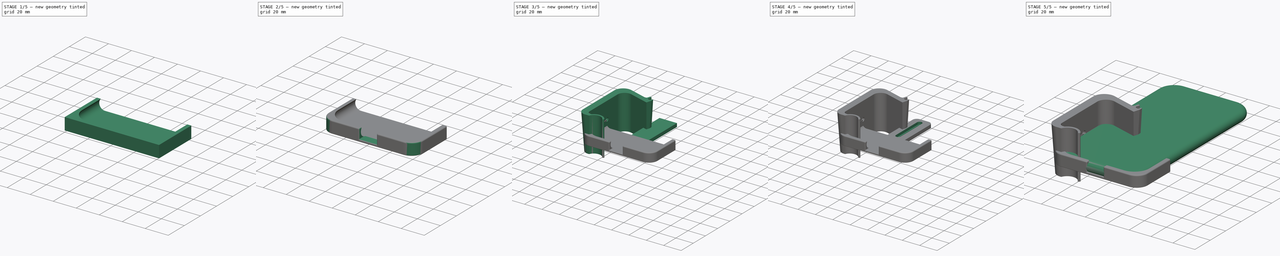
[diagram: build sequence overview — one tinted view per stage of 5, left to right]
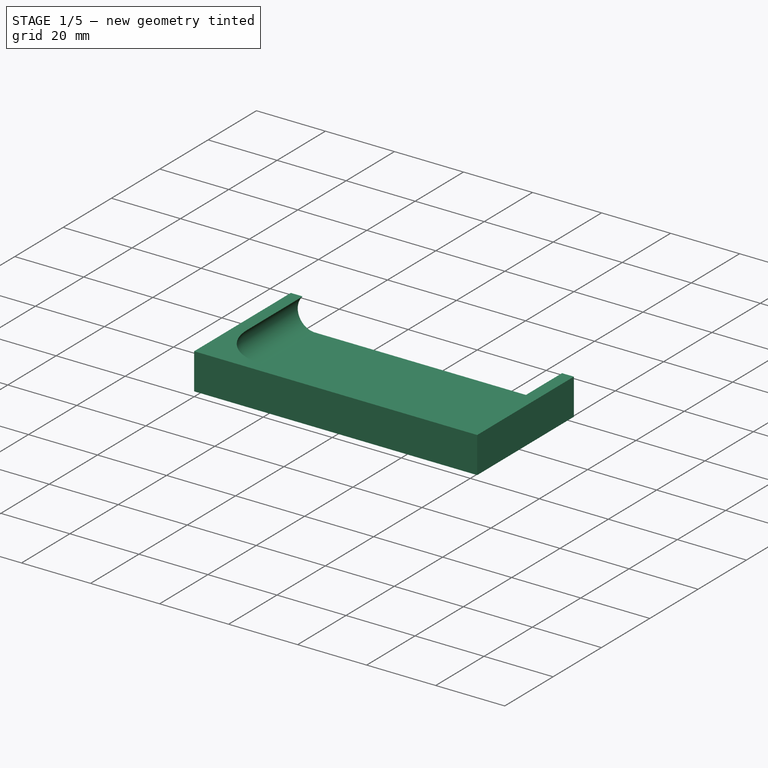
[diagram: stage 1 of 5 — iso view after this stage's code; geometry added in this stage tinted green]
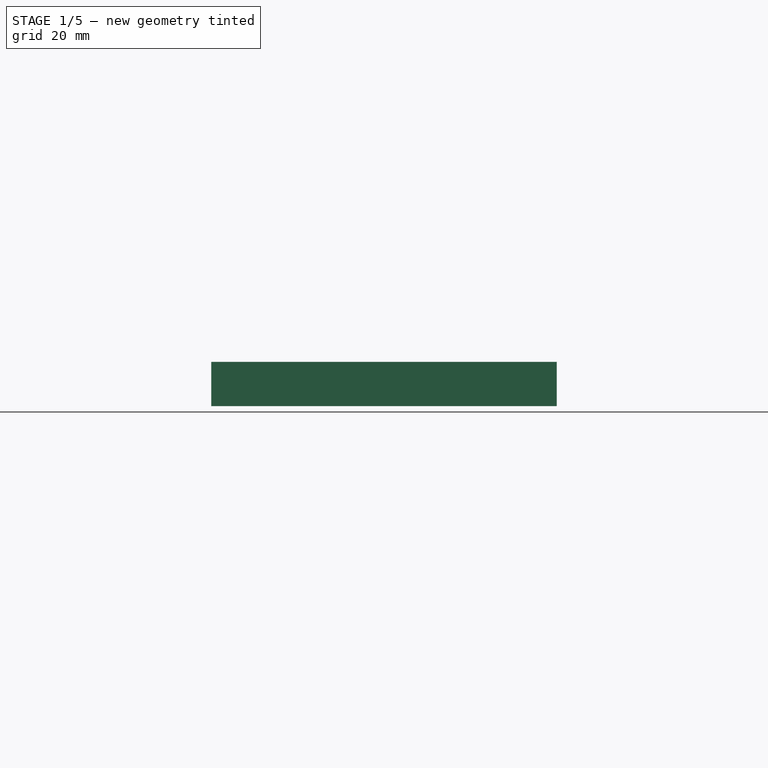
[diagram: stage 1 of 5 — front view after this stage's code; geometry added in this stage tinted green]
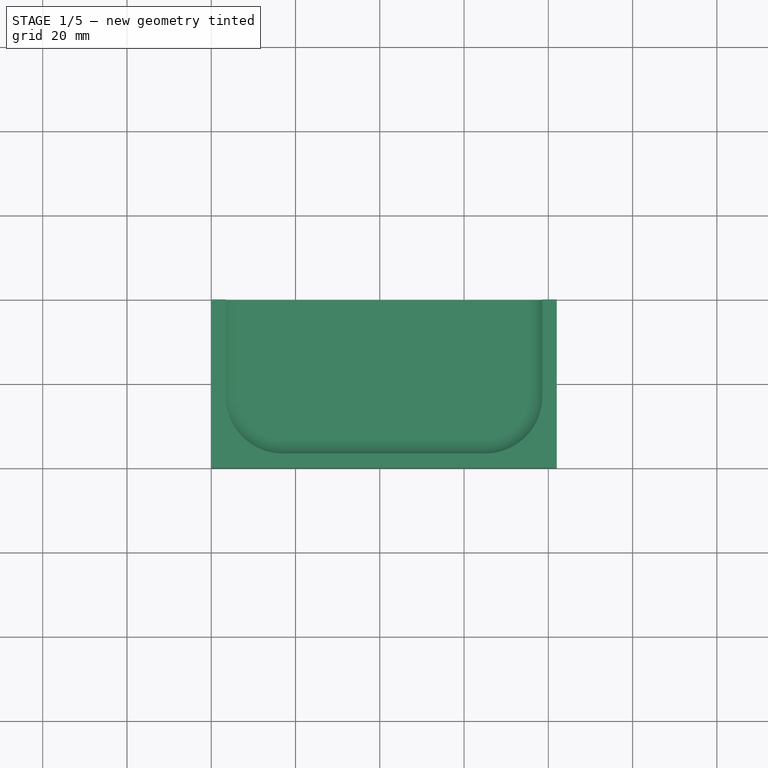
[diagram: stage 1 of 5 — top view after this stage's code; geometry added in this stage tinted green]
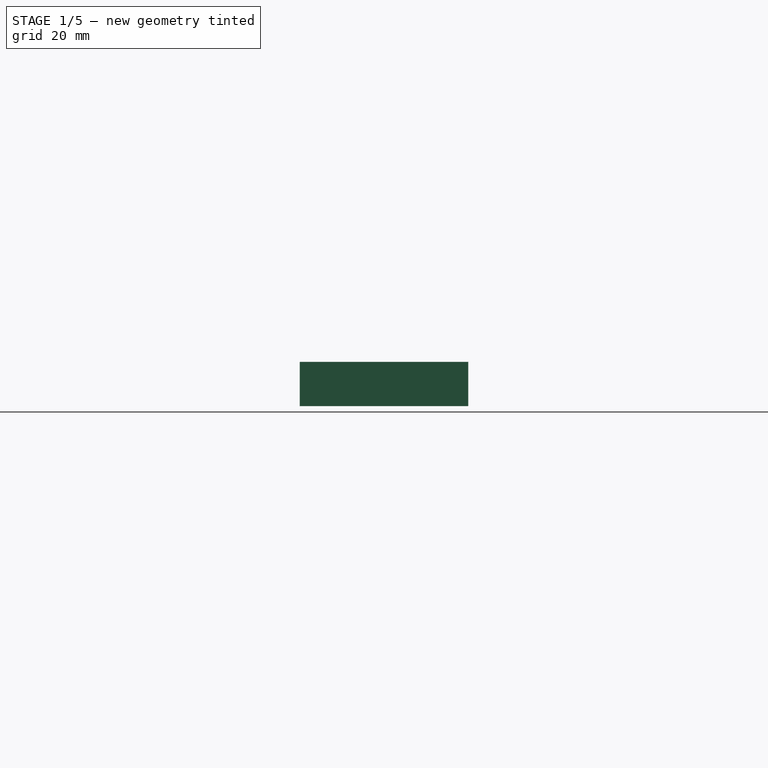
[diagram: stage 1 of 5 — right view after this stage's code; geometry added in this stage tinted green]
FCSTD DOCUMENT  (FreeCAD 0.19R)
Label: car_holder_iphone11_2
License: All rights reserved
LicenseURL: http://en.wikipedia.org/wiki/All_rights_reserved
objects: Sketcher::SketchObject×11, PartDesign::Fillet×6, PartDesign::Body×5, PartDesign::Pocket×4, PartDesign::Pad×2, PartDesign::AdditivePipe×2, PartDesign::AdditiveBox×2, PartDesign::Boolean×1, PartDesign::Chamfer×1, Part::Feature×1, PartDesign::FeatureBase×1, PartDesign::Hole×1
note: 55 computed .brp shape members not serialized (recipe doc carries the construction recipe); baked Part::Feature solids carry a one-line shape summary decoded from their .brp

FEATURE [Sketcher::SketchObject] Sketch
  FullyConstrained = true
  MapMode = 5
  Support = -> [XY_Plane]
  sketch-geometry (8):
    g0: LineSegment StartX=15 StartY=150 StartZ=0 EndX=63 EndY=150 EndZ=0
    g1: LineSegment StartX=73 StartY=140 StartZ=0 EndX=73 EndY=15 EndZ=0
    g2: LineSegment StartX=63 StartY=5 StartZ=0 EndX=15 EndY=5 EndZ=0
    g3: LineSegment StartX=5 StartY=15 StartZ=0 EndX=5 EndY=140 EndZ=0
    g4: ArcOfCircle CenterX=15 CenterY=140 CenterZ=0 NormalX=0 NormalY=0 NormalZ=1 AngleXU=0 Radius=10 StartAngle=1.5708 EndAngle=3.14159
    g5: ArcOfCircle CenterX=63 CenterY=140 CenterZ=0 NormalX=0 NormalY=0 NormalZ=1 AngleXU=0 Radius=10 StartAngle=-3.38e-14 EndAngle=1.5708
    g6: ArcOfCircle CenterX=63 CenterY=15 CenterZ=0 NormalX=0 NormalY=0 NormalZ=1 AngleXU=0 Radius=10 StartAngle=4.71239 EndAngle=6.28319
    g7: ArcOfCircle CenterX=15 CenterY=15 CenterZ=0 NormalX=0 NormalY=0 NormalZ=1 AngleXU=0 Radius=10 StartAngle=3.14159 EndAngle=4.71239
  constraints (20):
    c: Horizontal(g0)
    c: Horizontal(g2)
    c: Vertical(g1)
    c: Vertical(g3)
    c: Tangent(g0,g4) = 1.5708
    c: Tangent(g3,g4) = 1.5708
    c: Tangent(g0,g5) = 1.5708
    c: Tangent(g1,g5) = 1.5708
    c: Tangent(g1,g6) = 1.5708
    c: Tangent(g2,g6) = 1.5708
    c: Tangent(g2,g7) = 1.5708
    c: Tangent(g3,g7) = 1.5708
    c: Equal(g4,g5)
    c: Equal(g5,g6)
    c: Equal(g6,g7)
    c: Radius(g4) = 10
    c: DistanceX(g3,g1) = 68
    c: DistanceY(g1,g1) = 125
    c: DistanceY(g-1,g2) = 5
    c: DistanceX(g-1,g3) = 5
FEATURE [Sketcher::SketchObject] Sketch001
  AttachmentOffset = pos=(5,5,5) rot=(0,0,1;0rad)
  FullyConstrained = true
  MapMode = 5
  Placement = pos=(5,5,5) rot=(0,0,1;0rad)
  Support = -> [XY_Plane]
  sketch-geometry (8):
    g0: LineSegment StartX=10 StartY=145 StartZ=0 EndX=58 EndY=145 EndZ=0
    g1: LineSegment StartX=68 StartY=135 StartZ=0 EndX=68 EndY=10 EndZ=0
    g2: LineSegment StartX=58 StartY=1.563e-13 StartZ=0 EndX=10 EndY=1.563e-13 EndZ=0
    g3: LineSegment StartX=3.02e-14 StartY=10 StartZ=0 EndX=3.02e-14 EndY=135 EndZ=0
    g4: ArcOfCircle CenterX=10 CenterY=135 CenterZ=0 NormalX=0 NormalY=0 NormalZ=1 AngleXU=0 Radius=10 StartAngle=1.5708 EndAngle=3.14159
    g5: ArcOfCircle CenterX=58 CenterY=135 CenterZ=0 NormalX=0 NormalY=0 NormalZ=1 AngleXU=0 Radius=10 StartAngle=-3.2e-14 EndAngle=1.5708
    g6: ArcOfCircle CenterX=58 CenterY=10 CenterZ=0 NormalX=0 NormalY=0 NormalZ=1 AngleXU=0 Radius=10 StartAngle=4.71239 EndAngle=6.28319
    g7: ArcOfCircle CenterX=10 CenterY=10 CenterZ=0 NormalX=0 NormalY=0 NormalZ=1 AngleXU=0 Radius=10 StartAngle=3.14159 EndAngle=4.71239
  constraints (20):
    c: Horizontal(g0)
    c: Horizontal(g2)
    c: Vertical(g1)
    c: Vertical(g3)
    c: Tangent(g0,g4) = 1.5708
    c: Tangent(g3,g4) = 1.5708
    c: Tangent(g0,g5) = 1.5708
    c: Tangent(g1,g5) = 1.5708
    c: Tangent(g1,g6) = 1.5708
    c: Tangent(g2,g6) = 1.5708
    c: Tangent(g2,g7) = 1.5708
    c: Tangent(g3,g7) = 1.5708
    c: Equal(g4,g5)
    c: Equal(g5,g6)
    c: Equal(g6,g7)
    c: Radius(g4) = 10
    c: DistanceX(g3,g1) = 68
    c: DistanceY(g1,g1) = 125
    c: Horizontal(g2,g-1)
    c: Vertical(g3,g-1)
FEATURE [PartDesign::Pad] Pad
  Direction = (1,1,1)
  Length = 10
  Length2 = 100
  Profile = -> Sketch
  Refine = true
  Type = 0
FEATURE [Sketcher::SketchObject] Sketch002
  AttachmentOffset = pos=(0,0,-15) rot=(0,0,1;0rad)
  FullyConstrained = true
  MapMode = 5
  Placement = pos=(0,15,-3.3e-15) rot=(1,0,0;1.5708rad)
  Support = -> [XZ_Plane]
  sketch-geometry (4):
    g0: ArcOfCircle CenterX=5 CenterY=5 CenterZ=0 NormalX=0 NormalY=0 NormalZ=1 AngleXU=0 Radius=5 StartAngle=1.5708 EndAngle=4.71239
    g1: LineSegment StartX=5 StartY=10 StartZ=0 EndX=6 EndY=10 EndZ=0
    g2: LineSegment StartX=6 StartY=10 StartZ=0 EndX=6 EndY=0 EndZ=0
    g3: LineSegment StartX=6 StartY=0 StartZ=0 EndX=5 EndY=0 EndZ=0
  constraints (12):
    c: Vertical(g0,g0)
    c: Vertical(g0,g0)
    c: Radius(g0) = 5
    c: DistanceX(g0,g-1) = -5
    c: Horizontal(g0,g-1)
    c: Tangent(g0,g1) = 1.5708
    c: Coincident(g1,g2)
    c: PointOnObject(g2,g-1)
    c: Vertical(g2)
    c: Coincident(g2,g3)
    c: Coincident(g3,g0)
    c: DistanceX(g1,g1) = 1
FEATURE [PartDesign::AdditivePipe] AdditivePipe
  AuxilleryCurvelinear = true
  AuxillerySpineTangent = false
  BaseFeature = -> Pad
  Binormal = (0,0,0)
  Mode = 0
  Profile = -> Sketch002
  Refine = true
  Spine = -> Sketch001
  SpineTangent = false
  Transformation = 0
  Transition = 0
FEATURE [PartDesign::Body] Body
  Group = -> [Sketch,Pad,Sketch001,Sketch002,AdditivePipe]
  Origin = -> Origin
  Placement = pos=(2,2,2) rot=(0,0,1;0rad)
  Tip = -> AdditivePipe
FEATURE [PartDesign::AdditiveBox] Box
  AttacherType = Attacher::AttachEngine3D
  Height = 10.5
  Length = 82
  Refine = true
  Width = 40
FEATURE [PartDesign::Boolean] Boolean
  BaseFeature = -> Box
  Group = -> [Body]
  Refine = true
  Type = 1
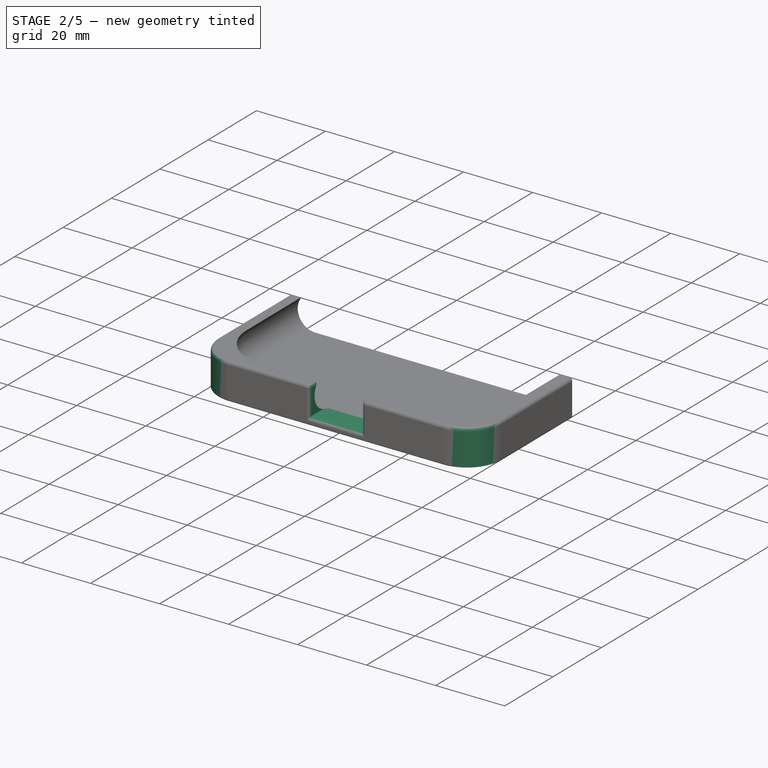
[diagram: stage 2 of 5 — iso view after this stage's code; geometry added in this stage tinted green]
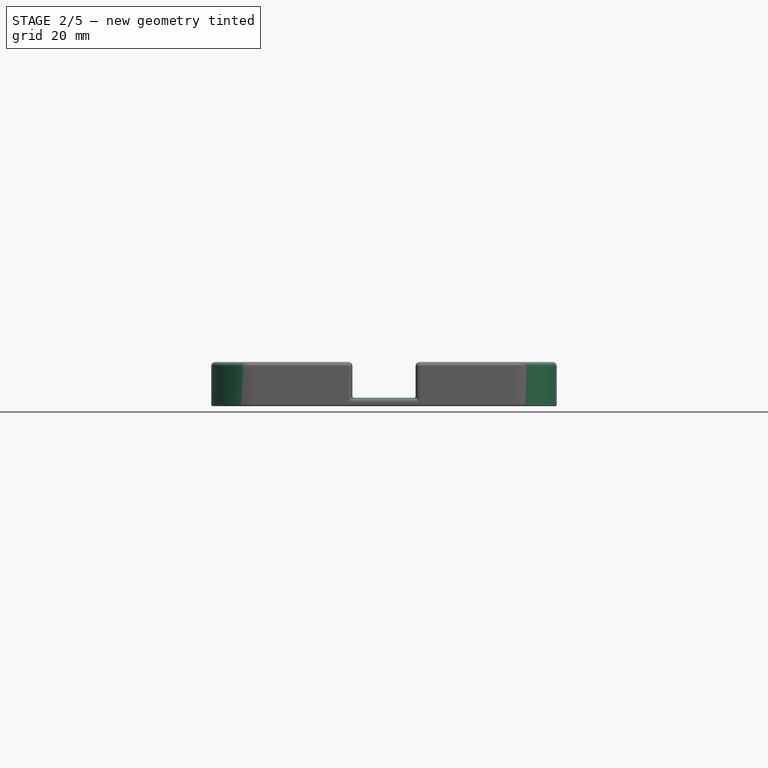
[diagram: stage 2 of 5 — front view after this stage's code; geometry added in this stage tinted green]
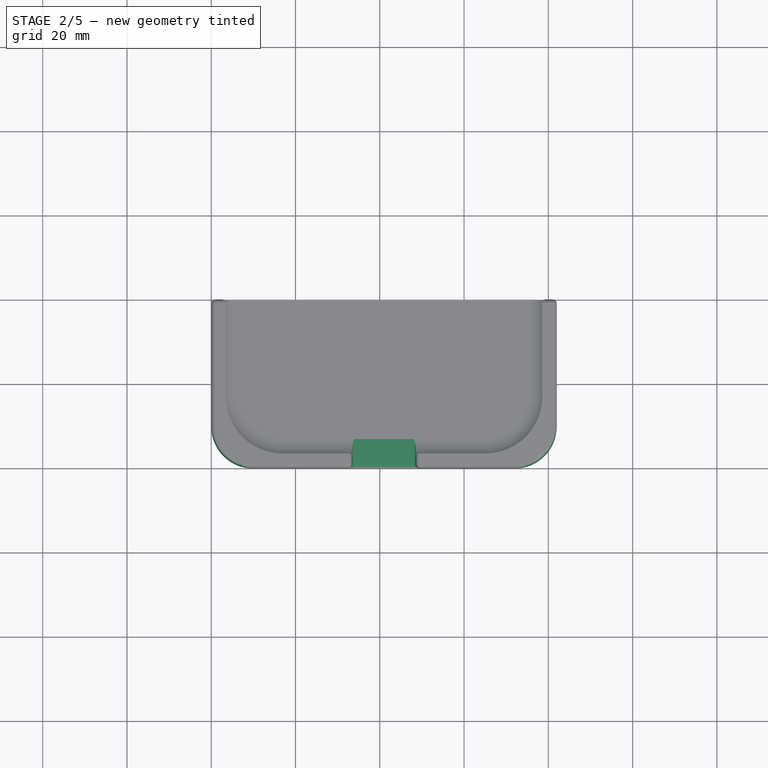
[diagram: stage 2 of 5 — top view after this stage's code; geometry added in this stage tinted green]
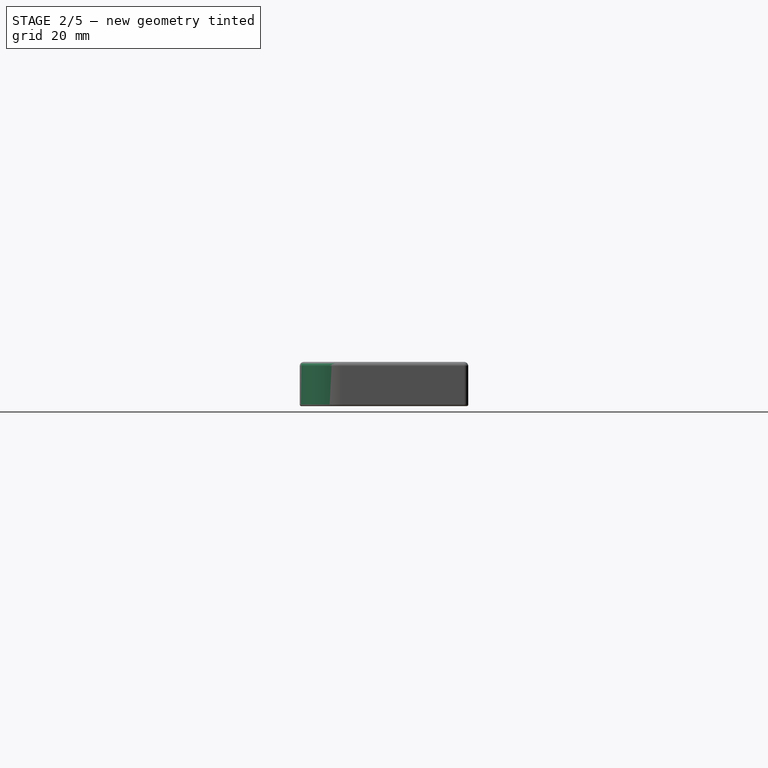
[diagram: stage 2 of 5 — right view after this stage's code; geometry added in this stage tinted green]
FEATURE [PartDesign::Body] Body004  label="clamp"
  BaseFeature = -> Part__Feature
  Group = -> [BaseFeature,Sketch009,Hole]
  Origin = -> Origin004
  Placement = pos=(31,30,-4.08) rot=(0,1,0;1.65806rad)
  Tip = -> Hole
FEATURE [Sketcher::SketchObject] Sketch010
  FullyConstrained = true
  MapMode = 5
  Placement = pos=(0,0,0) rot=(1,0,0;1.5708rad)
  Support = -> [XZ_Plane001]
  expr: Constraints[11] = (82 - 15) / 2
  sketch-geometry (4):
    g0: LineSegment StartX=33.5 StartY=10.5 StartZ=0 EndX=48.5 EndY=10.5 EndZ=0
    g1: LineSegment StartX=48.5 StartY=10.5 StartZ=0 EndX=48.5 EndY=2 EndZ=0
    g2: LineSegment StartX=48.5 StartY=2 StartZ=0 EndX=33.5 EndY=2 EndZ=0
    g3: LineSegment StartX=33.5 StartY=2 StartZ=0 EndX=33.5 EndY=10.5 EndZ=0
  constraints (12):
    c: Coincident(g0,g1)
    c: Coincident(g1,g2)
    c: Coincident(g2,g3)
    c: Coincident(g3,g0)
    c: Horizontal(g0)
    c: Horizontal(g2)
    c: Vertical(g1)
    c: Vertical(g3)
    c: DistanceY(g-1,g2) = 2
    c: DistanceX(g0,g0) = 15
    c: DistanceY(g1,g1) = 8.5
    c: DistanceX(g-1,g2) = 33.5
FEATURE [PartDesign::Pocket] Pocket003
  BaseFeature = -> Boolean
  Length = 5
  Length2 = 100
  Profile = -> Sketch010
  Refine = true
  Type = 1
FEATURE [PartDesign::Fillet] Fillet
  Base = -> Pocket003 [Edge1,Edge5]
  BaseFeature = -> Pocket003
  Radius = 10
  Refine = true
  SupportTransform = false
FEATURE [PartDesign::Fillet] Fillet004
  Base = -> Fillet [Edge1,Edge6,Edge5,Edge23,Edge37,Edge35,Edge7,Edge39,Edge27,Edge26,Edge25,Edge9,Edge15,Edge14,Edge3]
  BaseFeature = -> Fillet
  Radius = 1
  Refine = true
  SupportTransform = false
FEATURE [PartDesign::Fillet] Fillet005
  Base = -> Fillet004 [Edge6,Edge75,Edge73]
  BaseFeature = -> Fillet004
  Radius = 0.4
  Refine = true
  SupportTransform = false
FEATURE [PartDesign::Body] Body001  label="frame"
  Group = -> [Box,Boolean,Pocket003,Fillet,Sketch010,Fillet004,Fillet005]
  Origin = -> Origin001
  Tip = -> Fillet005
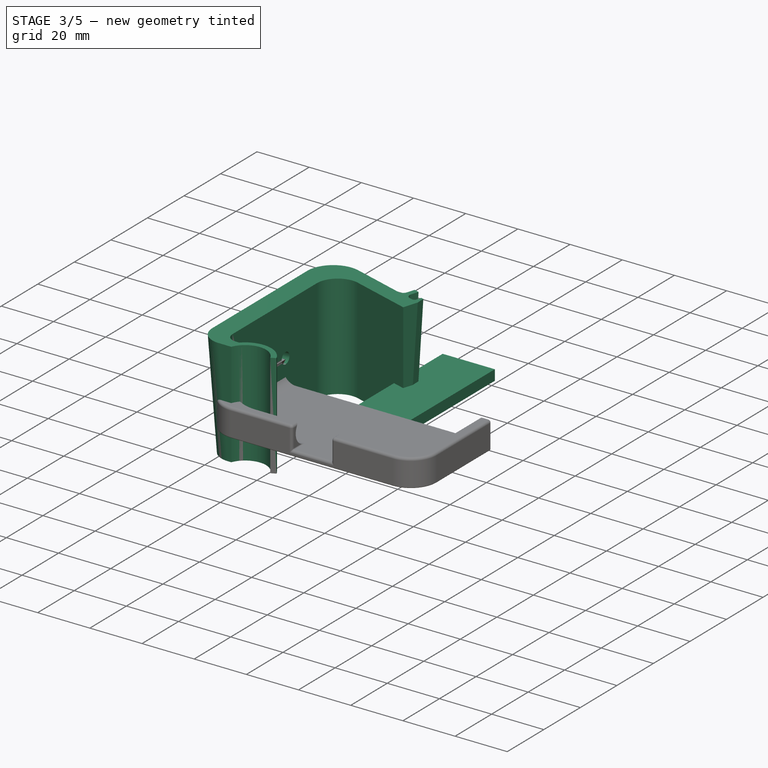
[diagram: stage 3 of 5 — iso view after this stage's code; geometry added in this stage tinted green]
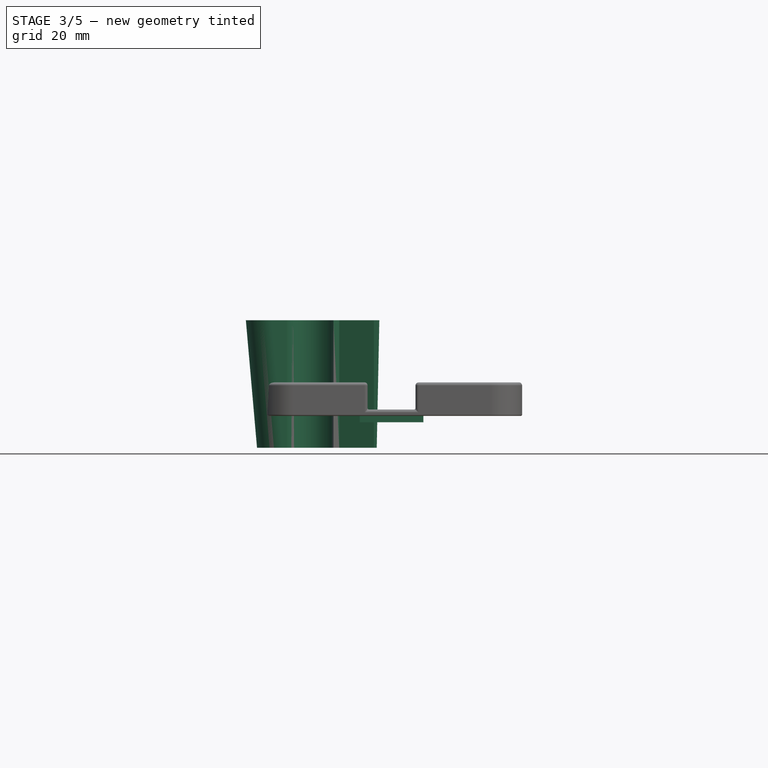
[diagram: stage 3 of 5 — front view after this stage's code; geometry added in this stage tinted green]
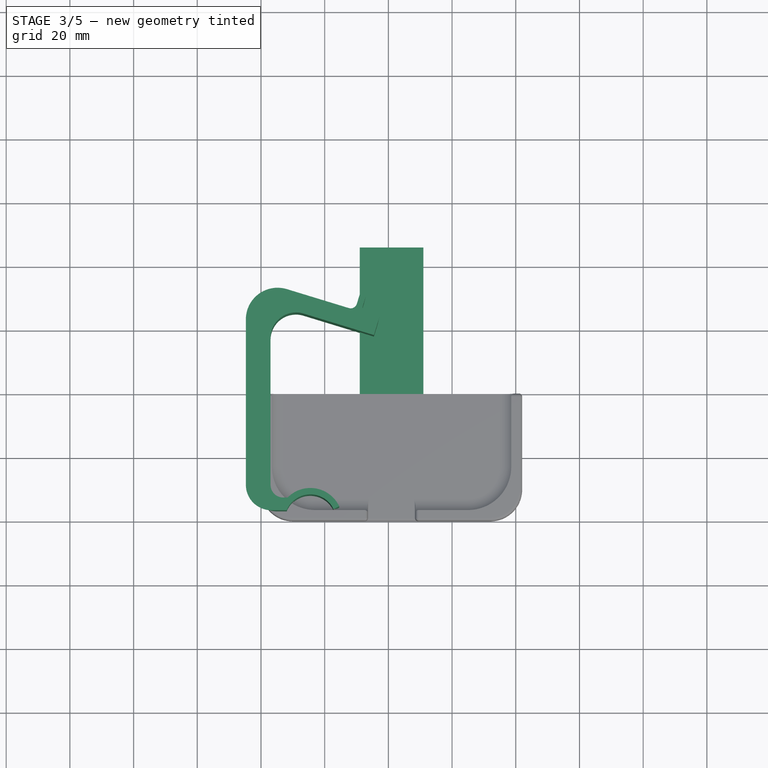
[diagram: stage 3 of 5 — top view after this stage's code; geometry added in this stage tinted green]
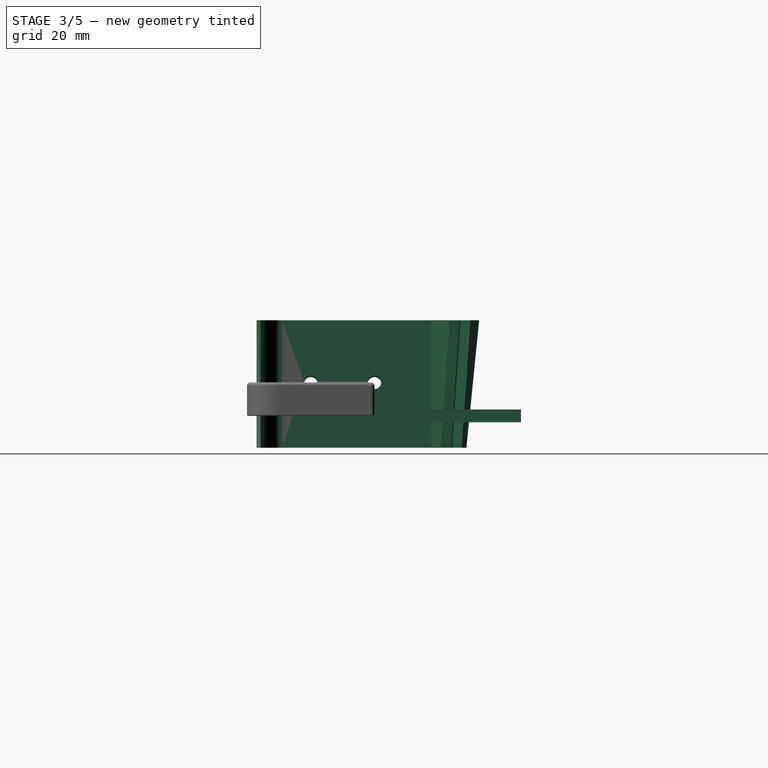
[diagram: stage 3 of 5 — right view after this stage's code; geometry added in this stage tinted green]
FEATURE [PartDesign::Body] Body002  label="phone"
  Group = -> [Sketch004,Pad001,Sketch005,Sketch003,AdditivePipe001]
  Origin = -> Origin002
  Placement = pos=(2,2,2) rot=(0,0,1;0rad)
  Tip = -> AdditivePipe001
FEATURE [PartDesign::AdditiveBox] Box001
  AttacherType = Attacher::AttachEngine3D
  AttachmentOffset = pos=(31,16,-2) rot=(0,0,1;0rad)
  Height = 4
  Length = 20
  MapMode = 5
  Placement = pos=(31,16,-2) rot=(0,0,1;0rad)
  Refine = true
  Support = -> [XY_Plane003]
  Width = 70
FEATURE [Sketcher::SketchObject] Sketch006
  FullyConstrained = true
  MapMode = 5
  Support = -> [XY_Plane003]
  expr: Constraints[9] = (82 - 20) / 2
  sketch-geometry (4):
    g0: LineSegment StartX=31 StartY=40 StartZ=0 EndX=51 EndY=40 EndZ=0
    g1: LineSegment StartX=51 StartY=40 StartZ=0 EndX=51 EndY=16 EndZ=0
    g2: LineSegment StartX=51 StartY=16 StartZ=0 EndX=31 EndY=16 EndZ=0
    g3: LineSegment StartX=31 StartY=16 StartZ=0 EndX=31 EndY=40 EndZ=0
  constraints (12):
    c: Coincident(g0,g1)
    c: Coincident(g1,g2)
    c: Coincident(g2,g3)
    c: Coincident(g3,g0)
    c: Horizontal(g0)
    c: Horizontal(g2)
    c: Vertical(g1)
    c: Vertical(g3)
    c: DistanceY(g-1,g2) = 16
    c: DistanceX(g-1,g2) = 31
    c: DistanceX(g2,g2) = 20
    c: DistanceY(g1,g0) = 24
FEATURE [PartDesign::Pocket] Pocket
  BaseFeature = -> Box001
  Length = 2
  Length2 = 100
  Placement = pos=(31,16,-2) rot=(0,0,1;0rad)
  Profile = -> Sketch006
  Refine = true
  Reversed = true
  Type = 0
FEATURE [PartDesign::Body] Body003  label="slide"
  Group = -> [Box001,Sketch006,Pocket,Sketch007,Pocket001,Sketch008,Pocket002,Fillet001,Chamfer,Fillet002,Fillet003]
  Origin = -> Origin003
  Tip = -> Fillet003
FEATURE [Part::Feature] Part__Feature  label="Golf-Clamp"
  Placement = pos=(31,30,-4.08) rot=(0,1,0;1.65806rad)
  shape: bbox 43.88 x 69.92 x 41.75 mm, 26 faces (baked)
FEATURE [PartDesign::FeatureBase] BaseFeature
  BaseFeature = -> Part__Feature
FEATURE [Sketcher::SketchObject] Sketch009
  AttachmentOffset = pos=(0,0,-3) rot=(1,0,0;-0.087266rad)
  FullyConstrained = true
  MapMode = 5
  Placement = pos=(-3,7e-16,-7e-16) rot=(-0.559809,-0.559809,-0.610924;4.23842rad)
  Support = -> [YZ_Plane004]
  sketch-geometry (2):
    g0: Circle CenterX=20 CenterY=10 CenterZ=0 NormalX=0 NormalY=0 NormalZ=1 AngleXU=0 Radius=3
    g1: Circle CenterX=40 CenterY=10 CenterZ=0 NormalX=0 NormalY=0 NormalZ=1 AngleXU=0 Radius=3
  constraints (6):
    c: Horizontal(g0,g1)
    c: Equal(g0,g1)
    c: Radius(g0) = 3
    c: DistanceX(g0,g1) = 20
    c: DistanceY(g-1,g0) = 10
    c: DistanceX(g-1,g0) = 20
FEATURE [PartDesign::Hole] Hole
  BaseFeature = -> BaseFeature
  Depth = 25
  DepthType = 1
  Diameter = 4.25
  DrillForDepth = false
  DrillPoint = 1
  DrillPointAngle = 118
  HoleCutCountersinkAngle = 90
  HoleCutCustomValues = false
  HoleCutDepth = 0
  HoleCutDiameter = 6.1
  HoleCutType = 0
  ModelActualThread = false
  Profile = -> Sketch009
  Refine = true
  Reversed = true
  Tapered = false
  TaperedAngle = 90
  ThreadAngle = 0
  ThreadClass = 0
  ThreadCutOffInner = 0
  ThreadCutOffOuter = 0
  ThreadDirection = 0
  ThreadFit = 0
  ThreadPitch = 0
  ThreadSize = 0
  ThreadType = 0
  Threaded = false
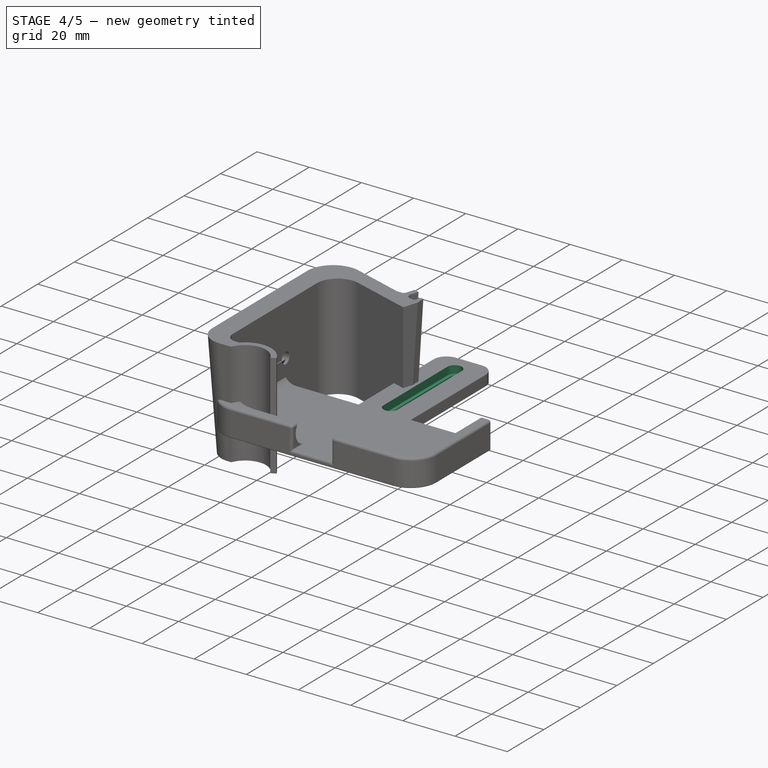
[diagram: stage 4 of 5 — iso view after this stage's code; geometry added in this stage tinted green]
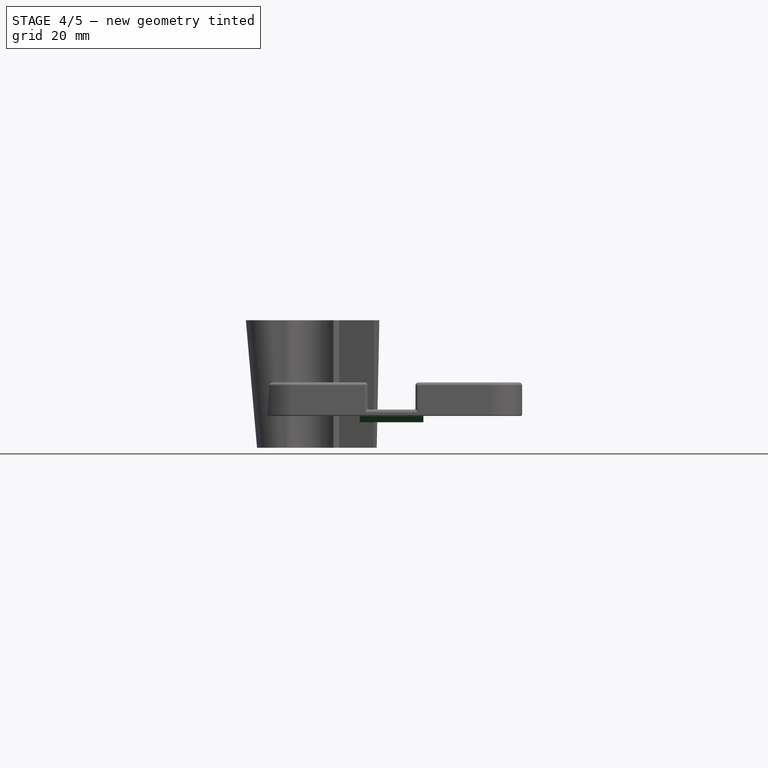
[diagram: stage 4 of 5 — front view after this stage's code; geometry added in this stage tinted green]
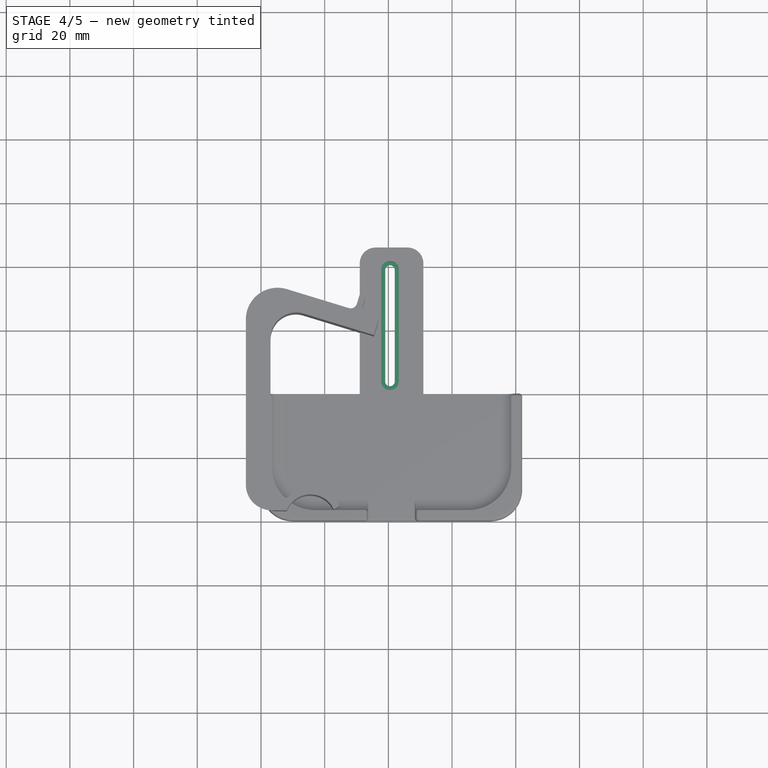
[diagram: stage 4 of 5 — top view after this stage's code; geometry added in this stage tinted green]
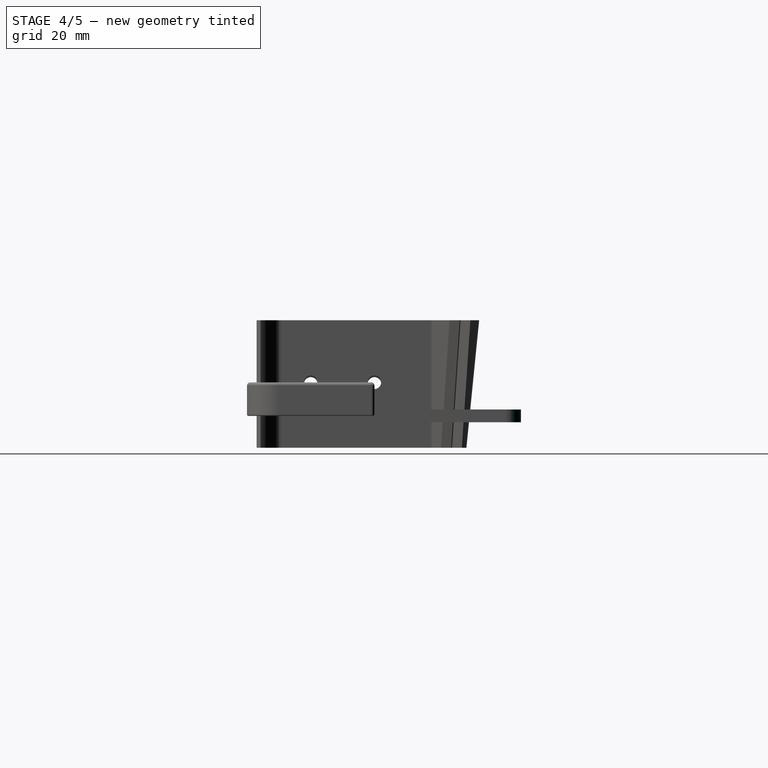
[diagram: stage 4 of 5 — right view after this stage's code; geometry added in this stage tinted green]
FEATURE [Sketcher::SketchObject] Sketch007
  AttachmentOffset = pos=(0,0,2) rot=(0,0,1;0rad)
  FullyConstrained = true
  MapMode = 5
  Placement = pos=(0,0,2) rot=(0,0,1;0rad)
  Support = -> [XY_Plane003]
  sketch-geometry (4):
    g0: ArcOfCircle CenterX=40.5 CenterY=79 CenterZ=0 NormalX=0 NormalY=0 NormalZ=1 AngleXU=0 Radius=1.5 StartAngle=2.9e-15 EndAngle=3.14159
    g1: ArcOfCircle CenterX=40.5 CenterY=44 CenterZ=0 NormalX=0 NormalY=0 NormalZ=1 AngleXU=0 Radius=1.5 StartAngle=3.14159 EndAngle=6.28319
    g2: LineSegment StartX=39 StartY=79 StartZ=0 EndX=39 EndY=44 EndZ=0
    g3: LineSegment StartX=42 StartY=79 StartZ=0 EndX=42 EndY=44 EndZ=0
  constraints (10):
    c: Tangent(g0,g3) = 1.5708
    c: Tangent(g0,g2) = -1.5708
    c: Tangent(g2,g1) = -1.5708
    c: Tangent(g3,g1) = 1.5708
    c: Vertical(g2)
    c: Equal(g0,g1)
    c: Radius(g0) = 1.5
    c: DistanceY(g3,g3) = 35
    c: DistanceX(g-1,g1) = 39
    c: DistanceY(g-1,g1) = 44
FEATURE [PartDesign::Pocket] Pocket001
  BaseFeature = -> Pocket
  Length = 4
  Length2 = 100
  Placement = pos=(31,16,-2) rot=(0,0,1;0rad)
  Profile = -> Sketch007
  Refine = true
  Type = 0
FEATURE [Sketcher::SketchObject] Sketch008
  AttachmentOffset = pos=(0,0,2) rot=(0,0,1;0rad)
  FullyConstrained = true
  MapMode = 5
  Placement = pos=(0,0,2) rot=(0,0,1;0rad)
  Support = -> [XY_Plane003]
  sketch-geometry (4):
    g0: ArcOfCircle CenterX=40.5 CenterY=79 CenterZ=0 NormalX=0 NormalY=0 NormalZ=1 AngleXU=0 Radius=2.75 StartAngle=-1.8e-15 EndAngle=3.14159
    g1: ArcOfCircle CenterX=40.5 CenterY=44 CenterZ=0 NormalX=0 NormalY=0 NormalZ=1 AngleXU=0 Radius=2.75 StartAngle=3.14159 EndAngle=6.28319
    g2: LineSegment StartX=37.75 StartY=79 StartZ=0 EndX=37.75 EndY=44 EndZ=0
    g3: LineSegment StartX=43.25 StartY=79 StartZ=0 EndX=43.25 EndY=44 EndZ=0
  constraints (10):
    c: Tangent(g0,g3) = 1.5708
    c: Tangent(g0,g2) = -1.5708
    c: Tangent(g2,g1) = -1.5708
    c: Tangent(g3,g1) = 1.5708
    c: Vertical(g2)
    c: Equal(g0,g1)
    c: Radius(g0) = 2.75
    c: DistanceY(g3,g3) = 35
    c: DistanceX(g-1,g1) = 37.75
    c: DistanceY(g-1,g1) = 44
FEATURE [PartDesign::Pocket] Pocket002
  BaseFeature = -> Pocket001
  Length = 3
  Length2 = 100
  Placement = pos=(31,16,-2) rot=(0,0,1;0rad)
  Profile = -> Sketch008
  Refine = true
  Type = 0
FEATURE [PartDesign::Fillet] Fillet001
  Base = -> Pocket002 [Edge5,Edge21]
  BaseFeature = -> Pocket002
  Placement = pos=(31,16,-2) rot=(0,0,1;0rad)
  Radius = 5
  Refine = true
  SupportTransform = false
FEATURE [PartDesign::Chamfer] Chamfer
  Angle = 45
  Base = -> Fillet001 [Edge20]
  BaseFeature = -> Fillet001
  ChamferType = 0
  FlipDirection = false
  Placement = pos=(31,16,-2) rot=(0,0,1;0rad)
  Refine = true
  Size = 1.9
  Size2 = 1
  SupportTransform = false
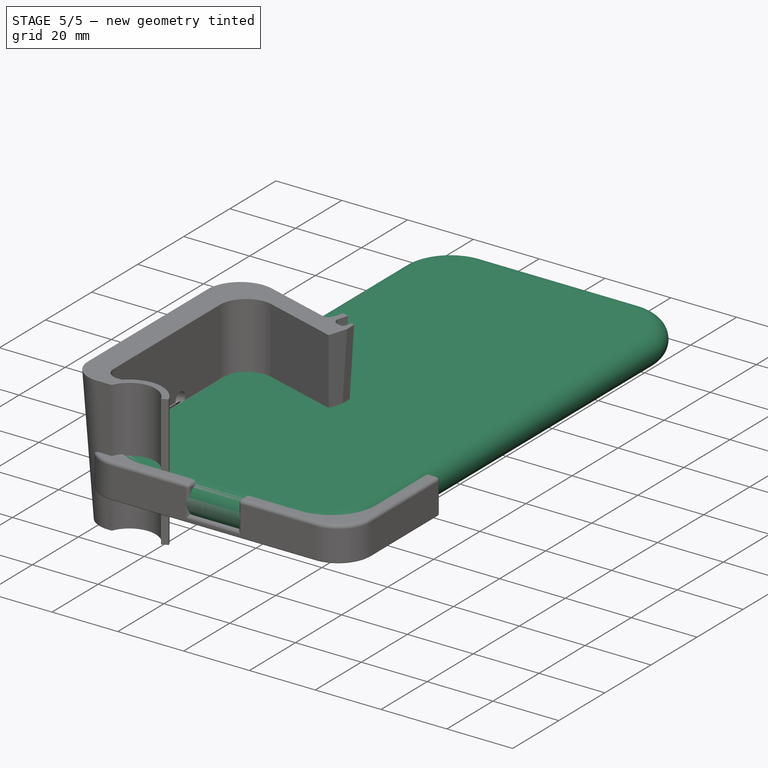
[diagram: stage 5 of 5 — iso view after this stage's code; geometry added in this stage tinted green]
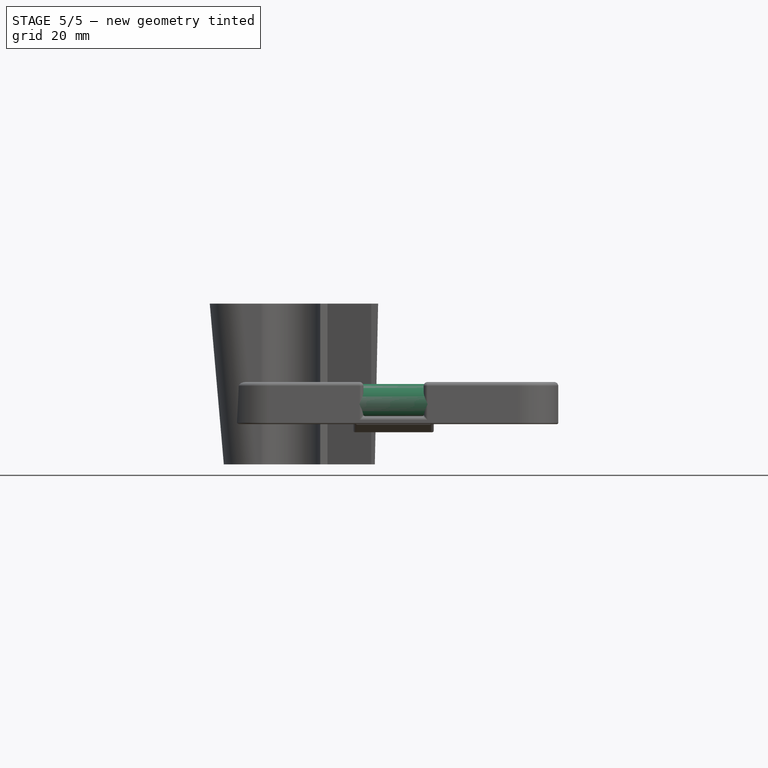
[diagram: stage 5 of 5 — front view after this stage's code; geometry added in this stage tinted green]
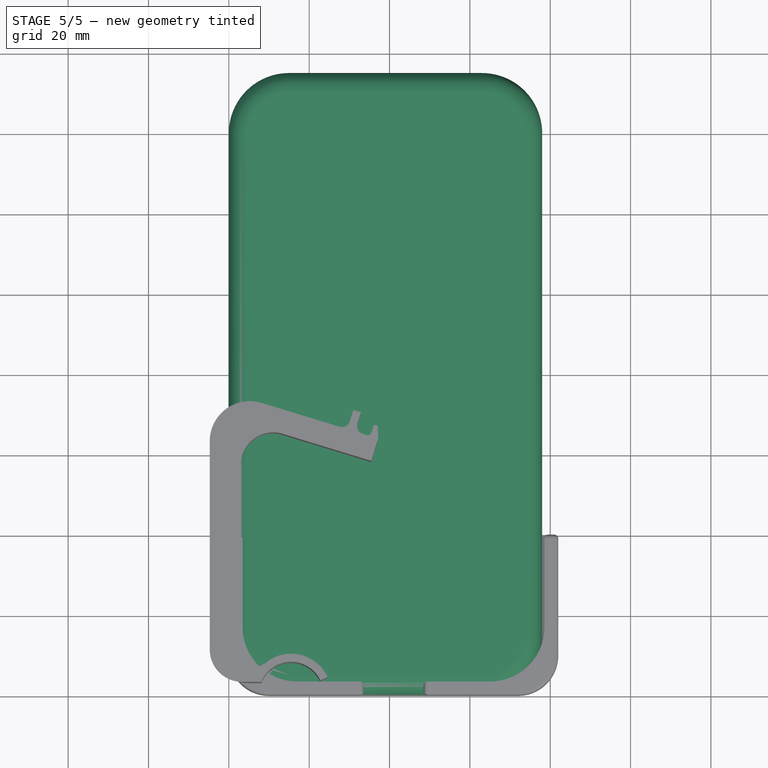
[diagram: stage 5 of 5 — top view after this stage's code; geometry added in this stage tinted green]
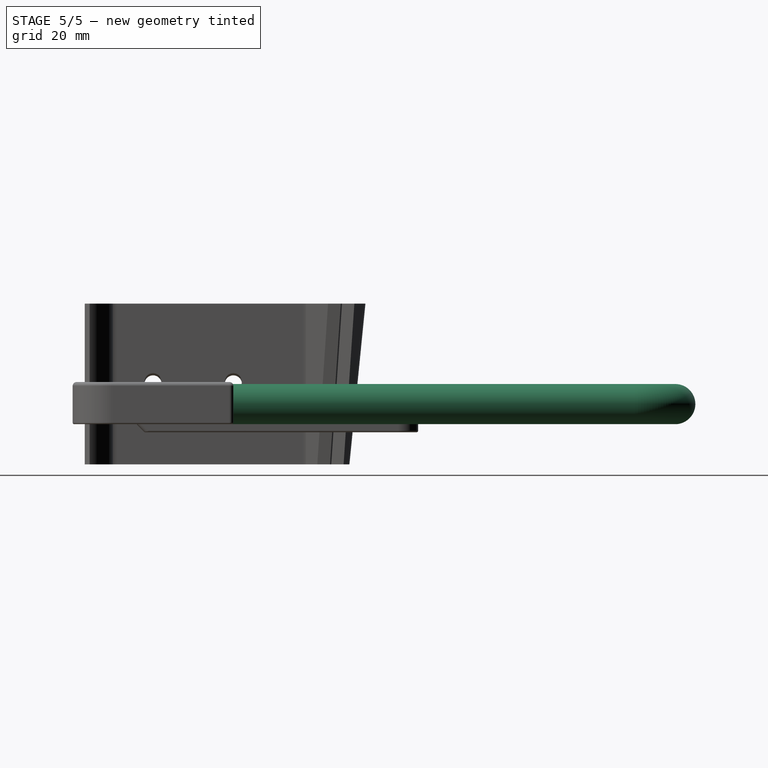
[diagram: stage 5 of 5 — right view after this stage's code; geometry added in this stage tinted green]
FEATURE [Sketcher::SketchObject] Sketch003
  AttachmentOffset = pos=(0,0,-15) rot=(0,0,1;0rad)
  FullyConstrained = true
  MapMode = 5
  Placement = pos=(0,15,3.3e-15) rot=(1,0,0;1.5708rad)
  Support = -> [XZ_Plane002]
  sketch-geometry (4):
    g0: ArcOfCircle CenterX=5 CenterY=5 CenterZ=0 NormalX=0 NormalY=0 NormalZ=1 AngleXU=0 Radius=5 StartAngle=1.5708 EndAngle=4.71239
    g1: LineSegment StartX=5 StartY=10 StartZ=0 EndX=6 EndY=10 EndZ=0
    g2: LineSegment StartX=6 StartY=10 StartZ=0 EndX=6 EndY=0 EndZ=0
    g3: LineSegment StartX=6 StartY=0 StartZ=0 EndX=5 EndY=0 EndZ=0
  constraints (12):
    c: Vertical(g0,g0)
    c: Vertical(g0,g0)
    c: Radius(g0) = 5
    c: DistanceX(g0,g-1) = -5
    c: Horizontal(g0,g-1)
    c: Tangent(g0,g1) = 1.5708
    c: Coincident(g1,g2)
    c: PointOnObject(g2,g-1)
    c: Vertical(g2)
    c: Coincident(g2,g3)
    c: Coincident(g3,g0)
    c: DistanceX(g1,g1) = 1
FEATURE [Sketcher::SketchObject] Sketch004
  FullyConstrained = true
  MapMode = 5
  Support = -> [XY_Plane002]
  sketch-geometry (8):
    g0: LineSegment StartX=15 StartY=150 StartZ=0 EndX=63 EndY=150 EndZ=0
    g1: LineSegment StartX=73 StartY=140 StartZ=0 EndX=73 EndY=15 EndZ=0
    g2: LineSegment StartX=63 StartY=5 StartZ=0 EndX=15 EndY=5 EndZ=0
    g3: LineSegment StartX=5 StartY=15 StartZ=0 EndX=5 EndY=140 EndZ=0
    g4: ArcOfCircle CenterX=15 CenterY=140 CenterZ=0 NormalX=0 NormalY=0 NormalZ=1 AngleXU=0 Radius=10 StartAngle=1.5708 EndAngle=3.14159
    g5: ArcOfCircle CenterX=63 CenterY=140 CenterZ=0 NormalX=0 NormalY=0 NormalZ=1 AngleXU=0 Radius=10 StartAngle=-3.38e-14 EndAngle=1.5708
    g6: ArcOfCircle CenterX=63 CenterY=15 CenterZ=0 NormalX=0 NormalY=0 NormalZ=1 AngleXU=0 Radius=10 StartAngle=4.71239 EndAngle=6.28319
    g7: ArcOfCircle CenterX=15 CenterY=15 CenterZ=0 NormalX=0 NormalY=0 NormalZ=1 AngleXU=0 Radius=10 StartAngle=3.14159 EndAngle=4.71239
  constraints (20):
    c: Horizontal(g0)
    c: Horizontal(g2)
    c: Vertical(g1)
    c: Vertical(g3)
    c: Tangent(g0,g4) = 1.5708
    c: Tangent(g3,g4) = 1.5708
    c: Tangent(g0,g5) = 1.5708
    c: Tangent(g1,g5) = 1.5708
    c: Tangent(g1,g6) = 1.5708
    c: Tangent(g2,g6) = 1.5708
    c: Tangent(g2,g7) = 1.5708
    c: Tangent(g3,g7) = 1.5708
    c: Equal(g4,g5)
    c: Equal(g5,g6)
    c: Equal(g6,g7)
    c: Radius(g4) = 10
    c: DistanceX(g3,g1) = 68
    c: DistanceY(g1,g1) = 125
    c: DistanceY(g-1,g2) = 5
    c: DistanceX(g-1,g3) = 5
FEATURE [PartDesign::Pad] Pad001
  Direction = (1,1,1)
  Length = 10
  Length2 = 100
  Profile = -> Sketch004
  Refine = true
  Type = 0
FEATURE [Sketcher::SketchObject] Sketch005
  AttachmentOffset = pos=(5,5,5) rot=(0,0,1;0rad)
  FullyConstrained = true
  MapMode = 5
  Placement = pos=(5,5,5) rot=(0,0,1;0rad)
  Support = -> [XY_Plane002]
  sketch-geometry (8):
    g0: LineSegment StartX=10 StartY=145 StartZ=0 EndX=58 EndY=145 EndZ=0
    g1: LineSegment StartX=68 StartY=135 StartZ=0 EndX=68 EndY=10 EndZ=0
    g2: LineSegment StartX=58 StartY=1.563e-13 StartZ=0 EndX=10 EndY=1.563e-13 EndZ=0
    g3: LineSegment StartX=3.02e-14 StartY=10 StartZ=0 EndX=3.02e-14 EndY=135 EndZ=0
    g4: ArcOfCircle CenterX=10 CenterY=135 CenterZ=0 NormalX=0 NormalY=0 NormalZ=1 AngleXU=0 Radius=10 StartAngle=1.5708 EndAngle=3.14159
    g5: ArcOfCircle CenterX=58 CenterY=135 CenterZ=0 NormalX=0 NormalY=0 NormalZ=1 AngleXU=0 Radius=10 StartAngle=-3.2e-14 EndAngle=1.5708
    g6: ArcOfCircle CenterX=58 CenterY=10 CenterZ=0 NormalX=0 NormalY=0 NormalZ=1 AngleXU=0 Radius=10 StartAngle=4.71239 EndAngle=6.28319
    g7: ArcOfCircle CenterX=10 CenterY=10 CenterZ=0 NormalX=0 NormalY=0 NormalZ=1 AngleXU=0 Radius=10 StartAngle=3.14159 EndAngle=4.71239
  constraints (20):
    c: Horizontal(g0)
    c: Horizontal(g2)
    c: Vertical(g1)
    c: Vertical(g3)
    c: Tangent(g0,g4) = 1.5708
    c: Tangent(g3,g4) = 1.5708
    c: Tangent(g0,g5) = 1.5708
    c: Tangent(g1,g5) = 1.5708
    c: Tangent(g1,g6) = 1.5708
    c: Tangent(g2,g6) = 1.5708
    c: Tangent(g2,g7) = 1.5708
    c: Tangent(g3,g7) = 1.5708
    c: Equal(g4,g5)
    c: Equal(g5,g6)
    c: Equal(g6,g7)
    c: Radius(g4) = 10
    c: DistanceX(g3,g1) = 68
    c: DistanceY(g1,g1) = 125
    c: Horizontal(g2,g-1)
    c: Vertical(g3,g-1)
FEATURE [PartDesign::AdditivePipe] AdditivePipe001
  AuxilleryCurvelinear = true
  AuxillerySpineTangent = false
  BaseFeature = -> Pad001
  Binormal = (0,0,0)
  Mode = 0
  Profile = -> Sketch003
  Refine = true
  Spine = -> Sketch005
  SpineTangent = false
  Transformation = 0
  Transition = 0
FEATURE [PartDesign::Fillet] Fillet002
  Base = -> Chamfer [Edge18,Edge2]
  BaseFeature = -> Chamfer
  Placement = pos=(31,16,-2) rot=(0,0,1;0rad)
  Radius = 1
  Refine = true
  SupportTransform = false
FEATURE [PartDesign::Fillet] Fillet003
  Base = -> Fillet002 [Edge9,Edge11,Edge13,Edge12,Edge10,Edge8,Edge1,Edge7,Vertex7,Edge29,Edge30,Edge28,Edge22,Edge5,Edge32,Edge31,Edge34,Edge33]
  BaseFeature = -> Fillet002
  Placement = pos=(31,16,-2) rot=(0,0,1;0rad)
  Radius = 0.4
  Refine = true
  SupportTransform = false
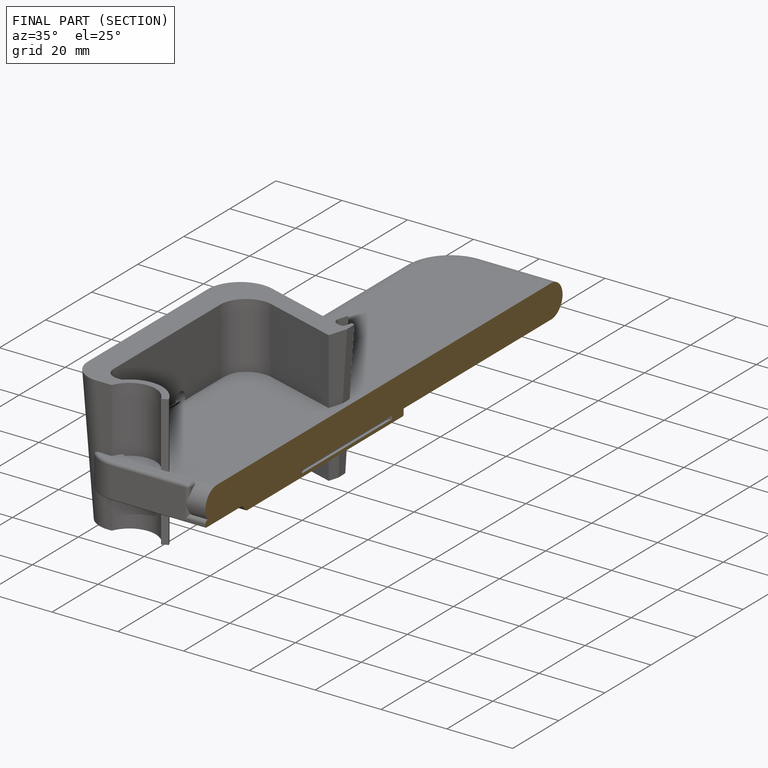
[diagram: finished part — half-section view (interior)]
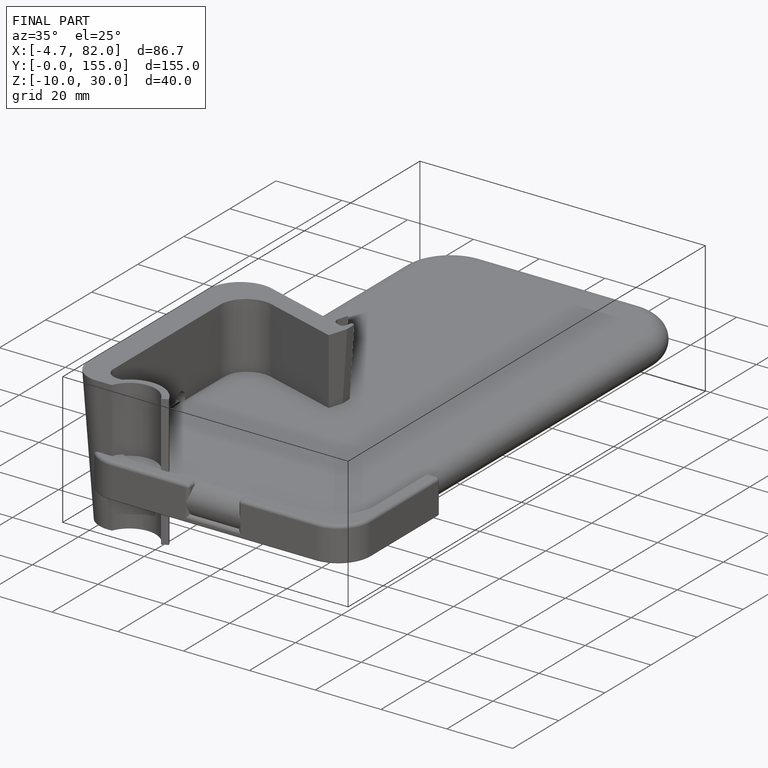
[diagram: finished part — iso view with bounding-box wireframe]
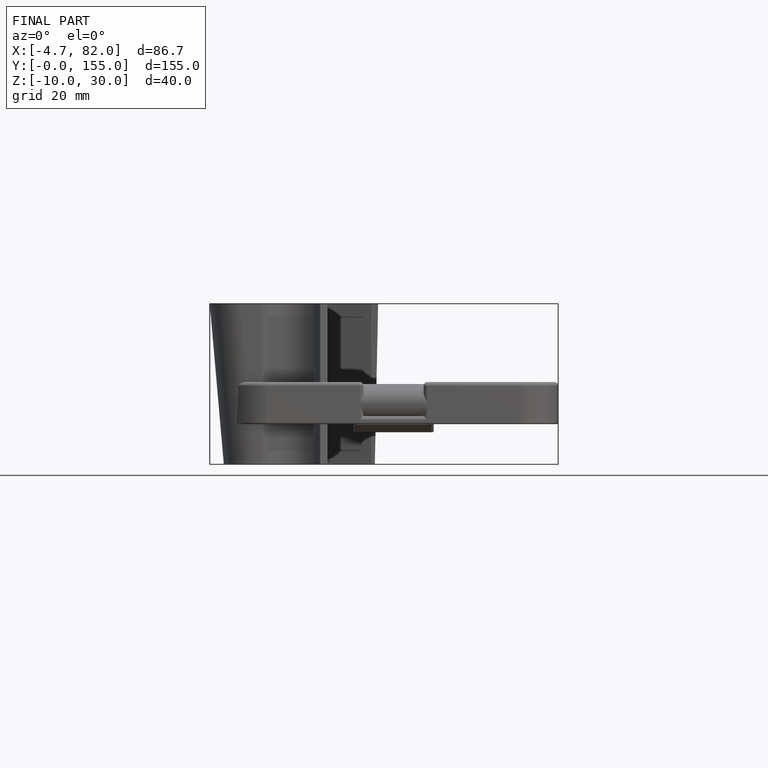
[diagram: finished part — front view with bounding-box wireframe]
